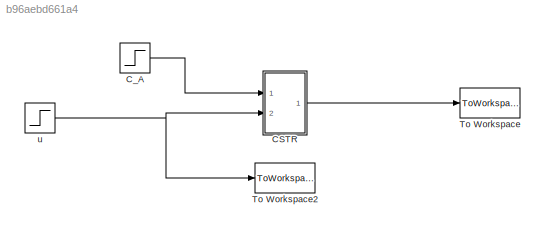
MODEL slx_b96aebd661a4
KIND model
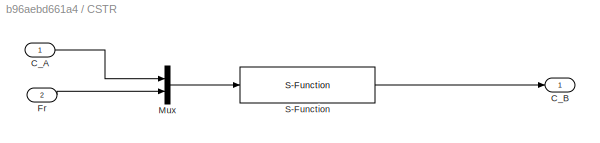
BLOCK [SubSystem] CSTR 
  Ports = [2, 1]
  RequestExecContextInheritance = off
BLOCK [Inport] CSTR /C_A
  IconDisplay = Port number
BLOCK [Outport] CSTR /C_B
  IconDisplay = Port number
BLOCK [Inport] CSTR /Fr
  IconDisplay = Port number
  Port = 2
BLOCK [Mux] CSTR /Mux
  DisplayOption = bar
  Inputs = 2
  Ports = [2, 1]
BLOCK [S-Function] CSTR /S-Function
  EnableBusSupport = off
  FunctionName = Ch2CSTR_Sfunction
  Parameters = C_Ao, C_Bo
  Ports = [1, 1]
BLOCK [Step] C_A
  After = C_Afeed*(1+C_Afeed_Change/100)
  Before = C_Afeed
  SampleTime = 0
  Time = C_Afeed_instant
BLOCK [ToWorkspace] To Workspace
  MaxDataPoints = inf
  Ports = [1]
  SampleTime = -1
  Save2DSignal = 3-D array (concatenate along third dimension)
  SaveFormat = Timeseries
  VariableName = C_B
BLOCK [ToWorkspace] To Workspace2
  MaxDataPoints = inf
  Ports = [1]
  SampleTime = -1
  Save2DSignal = 3-D array (concatenate along third dimension)
  SaveFormat = Timeseries
  VariableName = Fr
BLOCK [Step] u
  After = Fr_in*(1+Fr_Change/100)
  Before = Fr_in
  SampleTime = 0
  Time = Fr_instant
LINE CSTR /C_A:1 -> CSTR /Mux:1
LINE CSTR /Fr:1 -> CSTR /Mux:2
LINE CSTR /Mux:1 -> CSTR /S-Function:1
LINE CSTR /S-Function:1 -> CSTR /C_B:1
LINE CSTR :1 -> To Workspace:1
LINE C_A:1 -> CSTR :1
NET u:1 -> CSTR :2, To Workspace2:1
note: NET lines group one-source signal fan-out (src -> all destinations, sorted); 1:1 wires keep LINE
